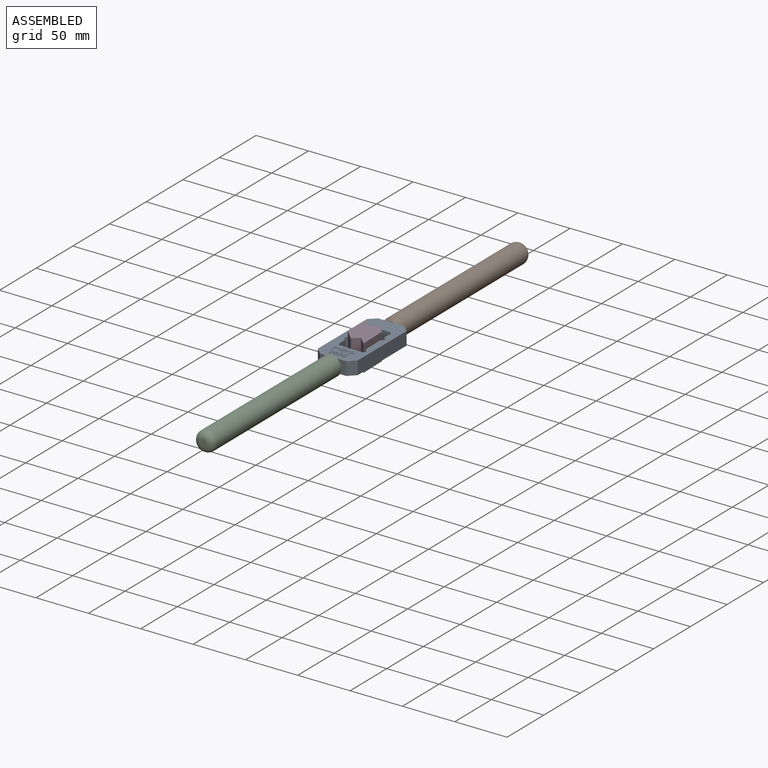
[diagram: assembled view]
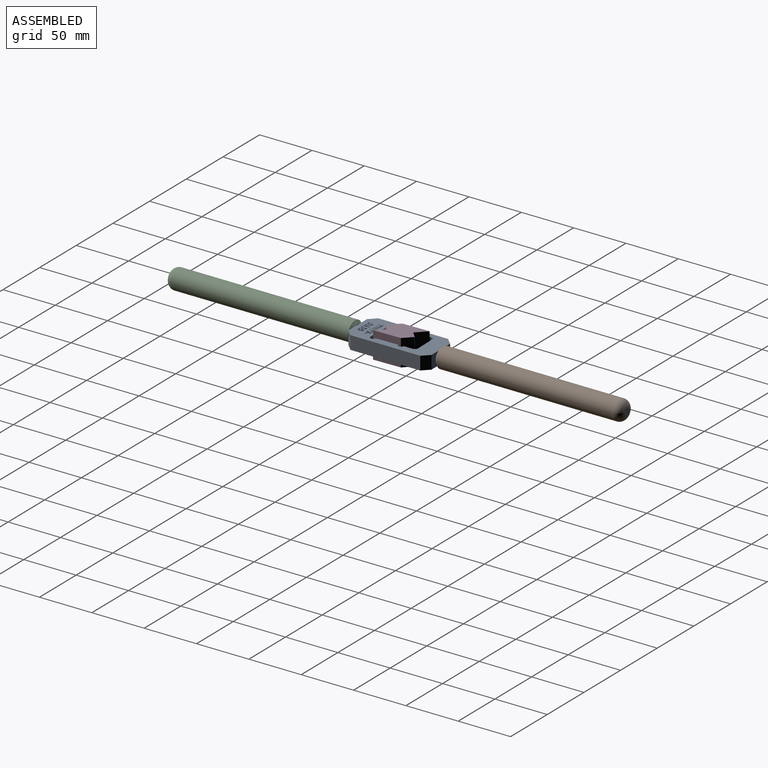
[diagram: assembled view, second angle]
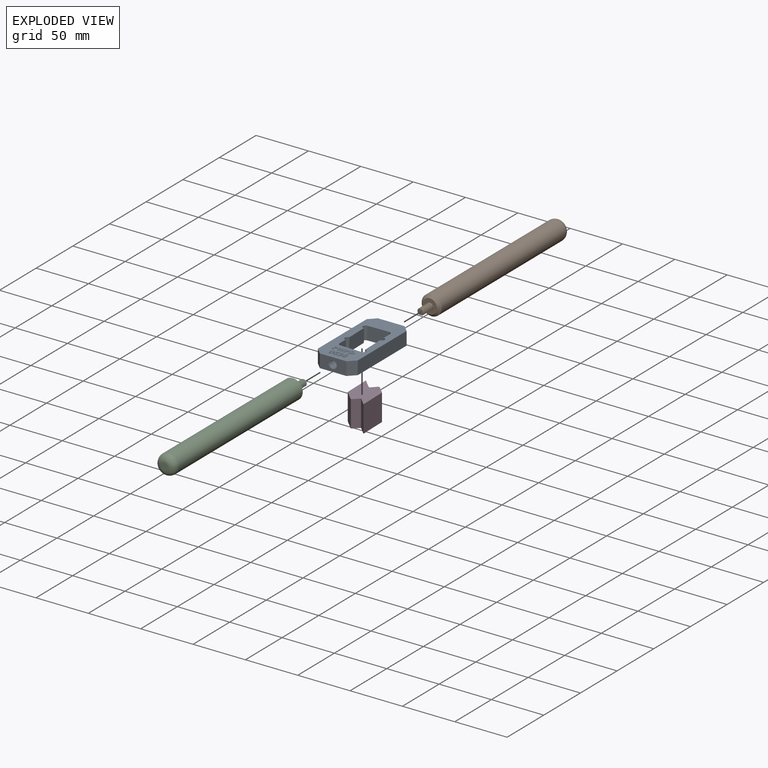
[diagram: exploded view]
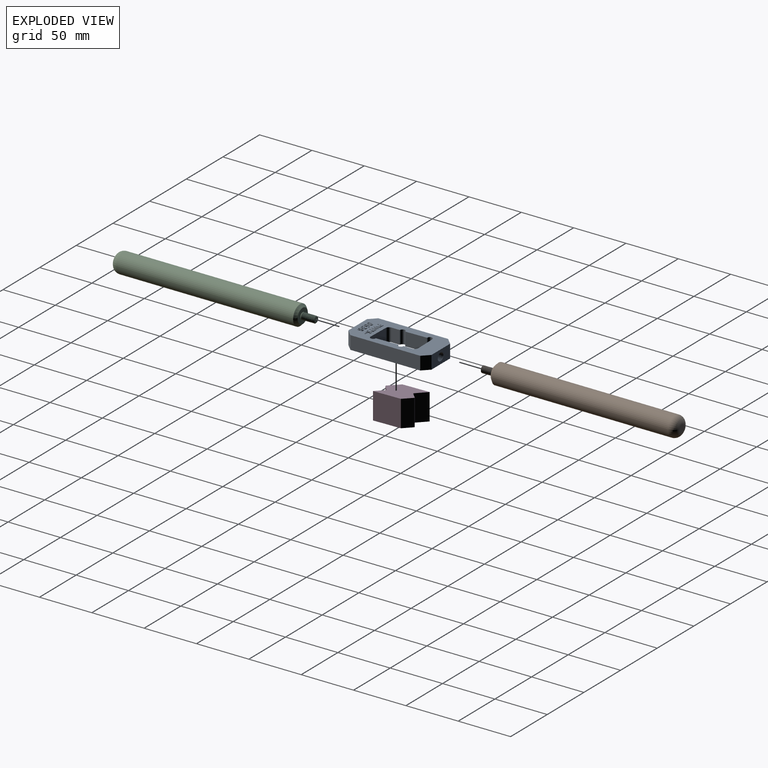
[diagram: exploded view, second angle]
ASSEMBLY  parts=4 mates=3
PART A: 237 faces, bbox 38.5x81.5x13.6 mm
  f0: plane 79.38x38.1mm, normal (0,0,1), area 1827.9mm2, adj f1,f2,f3,f4,f5,f6,f7,f8
  f1: plane 66.68x12.7mm, normal (-1,0,0), area 846.8mm2, adj f0,f15,f18,f21
  f2: plane 25.84x13.14mm, normal (0,-1,0), area 278mm2, adj f0,f15,f20,f21,f24,f25,f26
  f3: plane 66.68x12.7mm, normal (1,0,0), area 846.8mm2, adj f0,f15,f19,f20
  f4: cylinder r=2.54mm len=12.7mm, axis (0,0,-1), area 100.6mm2, adj f0,f5,f13,f15
  f5: plane 20.48x12.7mm, normal (1,0.02,0), area 260.2mm2, adj f0,f4,f6,f15
  f6: cylinder r=2.54mm len=12.7mm, axis (0,0,-1), area 102.1mm2, adj f0,f5,f7,f15
  f7: plane 19.98x12.7mm, normal (0.02,-1,0), area 253.8mm2, adj f0,f6,f15,f16
  f8: plane 12.7x8.46mm, normal (-1,0,0), area 107.5mm2, adj f0,f9,f15,f16
  f9: cylinder r=2.54mm len=12.7mm, axis (0,0,-1), area 100.6mm2, adj f0,f8,f10,f15
  f10: plane 21.11x12.7mm, normal (-1,-0.02,0), area 268.2mm2, adj f0,f9,f11,f15
  f11: cylinder r=2.54mm len=12.7mm, axis (0,0,-1), area 102.8mm2, adj f0,f10,f12,f15
  f12: plane 20.08x12.7mm, normal (0.02,1,0), area 255.1mm2, adj f0,f11,f15,f17
  f13: plane 12.7x8.16mm, normal (1,0,0), area 103.6mm2, adj f0,f4,f15,f17
  f14: plane 25.84x13.14mm, normal (0,1,0), area 278mm2, adj f0,f15,f18,f19,f30,f32,f33
  f15: plane 79.38x38.1mm, normal (0,0,-1), area 1928.1mm2, adj f1,f2,f3,f4,f5,f6,f7,f8
  f16: cylinder r=3.17mm len=12.7mm, axis (0,0,1), area 64.3mm2, adj f0,f7,f8,f15
  f17: cylinder r=3.17mm len=12.7mm, axis (0,0,1), area 62.4mm2, adj f0,f12,f13,f15
  f18: plane 12.7x6.35mm, normal (-0.71,0.71,0), area 114mm2, adj f0,f1,f14,f15
  f19: plane 12.7x6.35mm, normal (0.71,0.71,0), area 114mm2, adj f0,f3,f14,f15
  f20: plane 12.7x6.35mm, normal (0.71,-0.71,0), area 114mm2, adj f0,f2,f3,f15
  f21: plane 12.7x6.35mm, normal (-0.71,-0.71,0), area 114mm2, adj f0,f1,f2,f15
  f22: cone r=0mm half-angle=59deg, axis (0,-1,0), area 36.9mm2, adj f23
  f23: cylinder r=3.17mm len=12.37mm, axis (0,-1,0), area 14.1mm2, adj f22,f24,f25,f26,f27
  f24: cone r=3.17mm half-angle=45deg, axis (0,-1,0), area 1.7mm2, adj f2,f23,f25,f26
  f25: bspline ~13.32x9.82mm, area 282.4mm2, adj f2,f23,f24,f26,f27
  f26: bspline ~12.9x9.82mm, area 268.6mm2, adj f2,f23,f24,f25,f27
  f27: plane 1.24x1.08mm, normal (0,0,1), area 0.7mm2, adj f23,f25,f26
  f28: cone r=0mm half-angle=59deg, axis (0,1,0), area 36.9mm2, adj f29
  f29: cylinder r=3.17mm len=12.37mm, axis (0,1,0), area 14.1mm2, adj f28,f30,f31,f32,f33
  f30: cone r=3.17mm half-angle=45deg, axis (0,1,0), area 1.7mm2, adj f14,f29,f32,f33
  f31: plane 1.24x1.08mm, normal (0,0,1), area 0.7mm2, adj f29,f32,f33
  f32: bspline ~13.32x9.82mm, area 282.2mm2, adj f14,f29,f30,f31,f33
  f33: bspline ~12.9x9.82mm, area 268.8mm2, adj f14,f29,f30,f31,f32
  f34: extruded ~1.24x0.51mm, area 0.7mm2, adj f0,f35,f49,f50
  f35: extruded ~1.17x0.51mm, area 0.7mm2, adj f0,f34,f36,f50
  f36: extruded ~1.39x0.51mm, area 0.7mm2, adj f0,f35,f37,f50
  f37: plane 1.6x0.51mm, normal (0,1,0), area 0.8mm2, adj f0,f36,f38,f50
  f38: plane 5.01x0.51mm, normal (-1,0,0), area 2.5mm2, adj f0,f37,f39,f50
  f39: plane 1.06x0.51mm, normal (0,-1,0), area 0.5mm2, adj f0,f38,f40,f50
  f40: plane 1.78x0.51mm, normal (1,0,0), area 0.9mm2, adj f0,f39,f41,f50
  f41: plane 0.51x0.46mm, normal (0,-1,0), area 0.2mm2, adj f0,f40,f49,f50
  f42: plane 0.51x0.35mm, normal (0,1,0), area 0.2mm2, adj f43,f48,f50,f51
  f43: plane 1.49x0.51mm, normal (1,0,0), area 0.8mm2, adj f42,f44,f50,f51
  f44: plane 0.51x0.48mm, normal (0,-1,0), area 0.2mm2, adj f43,f45,f50,f51
  f45: extruded ~0.64x0.51mm, area 0.3mm2, adj f44,f46,f50,f51
  f46: extruded ~0.55x0.51mm, area 0.3mm2, adj f45,f47,f50,f51
  f47: extruded ~0.56x0.51mm, area 0.3mm2, adj f46,f48,f50,f51
  f48: extruded ~0.73x0.51mm, area 0.4mm2, adj f42,f47,f50,f51
  f49: extruded ~1.44x0.51mm, area 0.8mm2, adj f0,f34,f41,f50
  f50: plane 5.01x3.46mm, normal (0,0,1), area 10.3mm2, adj f34,f35,f36,f37,f38,f39,f40,f41
  f51: plane 1.49x1.33mm, normal (0,0,1), area 1.8mm2, adj f42,f43,f44,f45,f46,f47,f48
  f52: plane 1.21x0.51mm, normal (0,-1,0), area 0.6mm2, adj f0,f53,f75,f76
  f53: plane 5.01x1.28mm, normal (0.97,-0.25,0), area 2.6mm2, adj f0,f52,f54,f76
  f54: plane 1.05x0.51mm, normal (0,1,0), area 0.5mm2, adj f0,f53,f55,f76
  f55: plane 2.74x0.64mm, normal (-0.97,0.23,0), area 1.4mm2, adj f0,f54,f56,f76
  f56: extruded ~0.65x0.51mm, area 0.3mm2, adj f0,f55,f57,f76
  f57: extruded ~0.67x0.51mm, area 0.3mm2, adj f0,f56,f58,f76
  f58: extruded ~0.67x0.51mm, area 0.3mm2, adj f0,f57,f59,f76
  f59: extruded ~0.58x0.51mm, area 0.3mm2, adj f0,f58,f60,f76
  f60: plane 2.81x0.73mm, normal (0.97,0.25,0), area 1.5mm2, adj f0,f59,f61,f76
  f61: plane 1x0.51mm, normal (0,1,0), area 0.5mm2, adj f0,f60,f62,f76
  f62: plane 2.81x0.73mm, normal (-0.97,0.25,0), area 1.5mm2, adj f0,f61,f63,f76
  f63: extruded ~0.64x0.51mm, area 0.3mm2, adj f0,f62,f64,f76
  f64: extruded ~0.61x0.51mm, area 0.3mm2, adj f0,f63,f65,f76
  f65: extruded ~1.31x0.51mm, area 0.7mm2, adj f0,f64,f66,f76
  f66: plane 2.74x0.64mm, normal (0.97,0.23,0), area 1.4mm2, adj f0,f65,f67,f76
  f67: plane 1.05x0.51mm, normal (0,1,0), area 0.5mm2, adj f0,f66,f68,f76
  f68: plane 5.01x1.28mm, normal (-0.97,-0.25,0), area 2.6mm2, adj f0,f67,f69,f76
  f69: plane 1.21x0.51mm, normal (0,-1,0), area 0.6mm2, adj f0,f68,f70,f76
  f70: plane 2.63x0.67mm, normal (0.97,-0.25,0), area 1.4mm2, adj f0,f69,f71,f76
  f71: extruded ~0.58x0.51mm, area 0.3mm2, adj f0,f70,f72,f76
  f72: extruded ~0.6x0.51mm, area 0.3mm2, adj f0,f71,f73,f76
  f73: extruded ~0.59x0.51mm, area 0.3mm2, adj f0,f72,f74,f76
  f74: extruded ~0.58x0.51mm, area 0.3mm2, adj f0,f73,f75,f76
  f75: plane 2.63x0.68mm, normal (-0.97,-0.25,0), area 1.4mm2, adj f0,f52,f74,f76
  f76: plane 6.79x5.01mm, normal (0,0,1), area 17.4mm2, adj f52,f53,f54,f55,f56,f57,f58,f59
  f77: extruded ~1.24x0.51mm, area 0.7mm2, adj f0,f78,f92,f93
  f78: extruded ~1.17x0.51mm, area 0.7mm2, adj f0,f77,f79,f93
  f79: extruded ~1.39x0.51mm, area 0.7mm2, adj f0,f78,f80,f93
  f80: plane 1.6x0.51mm, normal (0,1,0), area 0.8mm2, adj f0,f79,f81,f93
  f81: plane 5.01x0.51mm, normal (-1,0,0), area 2.5mm2, adj f0,f80,f82,f93
  f82: plane 1.06x0.51mm, normal (0,-1,0), area 0.5mm2, adj f0,f81,f83,f93
  f83: plane 1.78x0.51mm, normal (1,0,0), area 0.9mm2, adj f0,f82,f84,f93
  f84: plane 0.51x0.46mm, normal (0,-1,0), area 0.2mm2, adj f0,f83,f92,f93
  f85: plane 0.51x0.35mm, normal (0,1,0), area 0.2mm2, adj f86,f91,f93,f94
  f86: plane 1.49x0.51mm, normal (1,0,0), area 0.8mm2, adj f85,f87,f93,f94
  f87: plane 0.51x0.48mm, normal (0,-1,0), area 0.2mm2, adj f86,f88,f93,f94
  f88: extruded ~0.64x0.51mm, area 0.3mm2, adj f87,f89,f93,f94
  f89: extruded ~0.55x0.51mm, area 0.3mm2, adj f88,f90,f93,f94
  f90: extruded ~0.56x0.51mm, area 0.3mm2, adj f89,f91,f93,f94
  f91: extruded ~0.73x0.51mm, area 0.4mm2, adj f85,f90,f93,f94
  f92: extruded ~1.44x0.51mm, area 0.8mm2, adj f0,f77,f84,f93
  f93: plane 5.01x3.46mm, normal (0,0,1), area 10.3mm2, adj f77,f78,f79,f80,f81,f82,f83,f84
  f94: plane 1.49x1.33mm, normal (0,0,1), area 1.8mm2, adj f85,f86,f87,f88,f89,f90,f91
  f95: extruded ~1.07x0.51mm, area 0.6mm2, adj f0,f96,f122,f123
  f96: extruded ~0.83x0.51mm, area 0.4mm2, adj f0,f95,f97,f123
  f97: extruded ~0.96x0.67mm, area 0.6mm2, adj f0,f96,f98,f123
  f98: extruded ~0.67x0.51mm, area 0.4mm2, adj f0,f97,f99,f123
  f99: extruded ~0.51x0.21mm, area 0.1mm2, adj f0,f98,f100,f123
  f100: extruded ~0.51x0.25mm, area 0.1mm2, adj f0,f99,f101,f123
  f101: extruded ~0.51x0.37mm, area 0.2mm2, adj f0,f100,f102,f123
  f102: extruded ~0.51x0.46mm, area 0.3mm2, adj f0,f101,f103,f123
  f103: extruded ~0.52x0.51mm, area 0.3mm2, adj f0,f102,f104,f123
  f104: extruded ~0.66x0.51mm, area 0.4mm2, adj f0,f103,f105,f123
  f105: plane 0.83x0.51mm, normal (0.92,-0.38,0), area 0.5mm2, adj f0,f104,f106,f123
  f106: extruded ~0.74x0.51mm, area 0.4mm2, adj f0,f105,f107,f123
  f107: extruded ~0.75x0.51mm, area 0.4mm2, adj f0,f106,f108,f123
  f108: extruded ~1.25x0.51mm, area 0.7mm2, adj f0,f107,f109,f123
  f109: extruded ~1.05x0.51mm, area 0.6mm2, adj f0,f108,f110,f123
  f110: extruded ~0.62x0.51mm, area 0.3mm2, adj f0,f109,f111,f123
  f111: extruded ~0.51x0.46mm, area 0.3mm2, adj f0,f110,f112,f123
  f112: extruded ~0.69x0.51mm, area 0.4mm2, adj f0,f111,f113,f123
  f113: extruded ~0.65x0.51mm, area 0.4mm2, adj f0,f112,f114,f123
  f114: extruded ~0.51x0.24mm, area 0.2mm2, adj f0,f113,f115,f123
  f115: extruded ~0.51x0.26mm, area 0.1mm2, adj f0,f114,f116,f123
  f116: extruded ~0.51x0.4mm, area 0.2mm2, adj f0,f115,f117,f123
  f117: extruded ~0.54x0.51mm, area 0.3mm2, adj f0,f116,f118,f123
  f118: extruded ~0.64x0.51mm, area 0.3mm2, adj f0,f117,f119,f123
  f119: extruded ~0.86x0.51mm, area 0.5mm2, adj f0,f118,f120,f123
  f120: plane 0.99x0.51mm, normal (-1,0,0), area 0.5mm2, adj f0,f119,f121,f123
  f121: extruded ~1.42x0.51mm, area 0.7mm2, adj f0,f120,f122,f123
  f122: extruded ~1.36x0.51mm, area 0.7mm2, adj f0,f95,f121,f123
  f123: plane 5.15x3.27mm, normal (0,0,1), area 9.5mm2, adj f95,f96,f97,f98,f99,f100,f101,f102
  f124: plane 0.86x0.51mm, normal (-1,0,0), area 0.4mm2, adj f0,f125,f127,f128
  f125: plane 1.84x0.51mm, normal (0,-1,0), area 0.9mm2, adj f0,f124,f126,f128
  f126: plane 0.86x0.51mm, normal (1,0,0), area 0.4mm2, adj f0,f125,f127,f128
  f127: plane 1.84x0.51mm, normal (0,1,0), area 0.9mm2, adj f0,f124,f126,f128
  f128: plane 1.84x0.86mm, normal (0,0,1), area 1.6mm2, adj f124,f125,f126,f127
  f129: extruded ~1.67x0.51mm, area 0.9mm2, adj f130,f144,f145,f146
  f130: extruded ~1.66x0.51mm, area 0.9mm2, adj f129,f131,f145,f146
  f131: extruded ~0.86x0.52mm, area 0.5mm2, adj f130,f132,f145,f146
  f132: extruded ~0.86x0.53mm, area 0.5mm2, adj f131,f133,f145,f146
  f133: extruded ~1.65x0.51mm, area 0.9mm2, adj f132,f134,f145,f146
  f134: extruded ~1.66x0.51mm, area 0.9mm2, adj f133,f135,f145,f146
  f135: extruded ~0.86x0.53mm, area 0.5mm2, adj f134,f144,f145,f146
  f136: extruded ~2.03x0.51mm, area 1.1mm2, adj f0,f137,f143,f145
  f137: extruded ~2x0.51mm, area 1.1mm2, adj f0,f136,f138,f145
  f138: extruded ~1.3x0.69mm, area 0.8mm2, adj f0,f137,f139,f145
  f139: extruded ~1.3x0.66mm, area 0.8mm2, adj f0,f138,f140,f145
  f140: extruded ~2.03x0.51mm, area 1.1mm2, adj f0,f139,f141,f145
  f141: extruded ~2.01x0.51mm, area 1.1mm2, adj f0,f140,f142,f145
  f142: extruded ~1.29x0.69mm, area 0.8mm2, adj f0,f141,f143,f145
  f143: extruded ~1.31x0.67mm, area 0.8mm2, adj f0,f136,f142,f145
  f144: extruded ~0.86x0.52mm, area 0.5mm2, adj f129,f135,f145,f146
  f145: plane 5.4x3.47mm, normal (0,0,1), area 7.3mm2, adj f129,f130,f131,f132,f133,f134,f135,f136
  f146: plane 4.37x2.25mm, normal (0,0,1), area 8.3mm2, adj f129,f130,f131,f132,f133,f134,f135,f144
  f147: extruded ~0.79x0.51mm, area 0.4mm2, adj f148,f171,f172,f173
  f148: extruded ~0.6x0.51mm, area 0.3mm2, adj f147,f149,f172,f173
  f149: extruded ~0.51x0.51mm, area 0.3mm2, adj f148,f150,f172,f173
  f150: extruded ~0.69x0.51mm, area 0.4mm2, adj f149,f151,f172,f173
  f151: extruded ~0.51x0.48mm, area 0.3mm2, adj f150,f152,f172,f173
  f152: extruded ~0.51x0.43mm, area 0.3mm2, adj f151,f153,f172,f173
  f153: extruded ~0.59x0.51mm, area 0.3mm2, adj f152,f154,f172,f173
  f154: extruded ~0.78x0.51mm, area 0.4mm2, adj f153,f155,f172,f173
  f155: extruded ~0.82x0.51mm, area 0.4mm2, adj f154,f171,f172,f173
  f156: extruded ~2.31x0.6mm, area 1.2mm2, adj f0,f157,f170,f172
  f157: extruded ~1.7x0.51mm, area 0.9mm2, adj f0,f156,f158,f172
  f158: extruded ~1.29x0.61mm, area 0.8mm2, adj f0,f157,f159,f172
  f159: extruded ~1.21x0.51mm, area 0.7mm2, adj f0,f158,f160,f172
  f160: extruded ~1.29x0.51mm, area 0.7mm2, adj f0,f159,f161,f172
  f161: extruded ~1.16x0.51mm, area 0.6mm2, adj f0,f160,f162,f172
  f162: extruded ~1.11x0.51mm, area 0.6mm2, adj f0,f161,f163,f172
  f163: extruded ~1.25x0.62mm, area 0.7mm2, adj f0,f162,f164,f172
  f164: plane 0.51x0.04mm, normal (0,1,0), area 0mm2, adj f0,f163,f165,f172
  f165: extruded ~1.65x0.51mm, area 0.9mm2, adj f0,f164,f166,f172
  f166: extruded ~1.29x0.52mm, area 0.7mm2, adj f0,f165,f167,f172
  f167: extruded ~0.63x0.51mm, area 0.3mm2, adj f0,f166,f168,f172
  f168: plane 0.51x0.51mm, normal (1,0,0), area 0.3mm2, adj f0,f167,f169,f172
  f169: extruded ~0.64x0.51mm, area 0.3mm2, adj f0,f168,f170,f172
  f170: extruded ~1.78x0.77mm, area 1mm2, adj f0,f156,f169,f172
  f171: extruded ~0.93x0.51mm, area 0.5mm2, adj f147,f155,f172,f173
  f172: plane 5.39x3.42mm, normal (0,0,1), area 7.1mm2, adj f147,f148,f149,f150,f151,f152,f153,f154
  f173: plane 2.36x2.22mm, normal (0,0,1), area 4.2mm2, adj f147,f148,f149,f150,f151,f152,f153,f154
  f174: extruded ~0.82x0.51mm, area 0.5mm2, adj f0,f175,f201,f202
  f175: extruded ~0.96x0.51mm, area 0.6mm2, adj f0,f174,f176,f202
  f176: extruded ~1.19x0.51mm, area 0.6mm2, adj f0,f175,f177,f202
  f177: extruded ~0.89x0.51mm, area 0.5mm2, adj f0,f176,f178,f202
  f178: extruded ~0.74x0.51mm, area 0.4mm2, adj f0,f177,f179,f202
  f179: plane 0.51x0.4mm, normal (-0.8,-0.6,0), area 0.3mm2, adj f0,f178,f180,f202
  f180: extruded ~0.7x0.51mm, area 0.4mm2, adj f0,f179,f181,f202
  f181: extruded ~0.65x0.51mm, area 0.3mm2, adj f0,f180,f182,f202
  f182: extruded ~0.72x0.51mm, area 0.4mm2, adj f0,f181,f183,f202
  f183: extruded ~0.6x0.51mm, area 0.3mm2, adj f0,f182,f184,f202
  f184: extruded ~0.75x0.51mm, area 0.4mm2, adj f0,f183,f185,f202
  f185: extruded ~0.97x0.51mm, area 0.5mm2, adj f0,f184,f186,f202
  f186: plane 0.52x0.51mm, normal (0,1,0), area 0.3mm2, adj f0,f185,f187,f202
  f187: plane 0.51x0.51mm, normal (-1,0,0), area 0.3mm2, adj f0,f186,f188,f202
  f188: plane 0.52x0.51mm, normal (0,-1,0), area 0.3mm2, adj f0,f187,f189,f202
  f189: extruded ~1.5x0.95mm, area 1mm2, adj f0,f188,f190,f202
  f190: extruded ~1.36x1.06mm, area 1mm2, adj f0,f189,f191,f202
  f191: extruded ~0.73x0.51mm, area 0.4mm2, adj f0,f190,f192,f202
  f192: extruded ~0.73x0.51mm, area 0.4mm2, adj f0,f191,f193,f202
  f193: plane 0.57x0.51mm, normal (-1,0,0), area 0.3mm2, adj f0,f192,f194,f202
  f194: extruded ~0.67x0.51mm, area 0.4mm2, adj f0,f193,f195,f202
  f195: extruded ~0.76x0.51mm, area 0.4mm2, adj f0,f194,f196,f202
  f196: extruded ~1.48x0.51mm, area 0.8mm2, adj f0,f195,f197,f202
  f197: extruded ~1.15x0.52mm, area 0.7mm2, adj f0,f196,f198,f202
  f198: extruded ~0.85x0.51mm, area 0.5mm2, adj f0,f197,f199,f202
  f199: extruded ~0.94x0.51mm, area 0.5mm2, adj f0,f198,f200,f202
  f200: plane 0.51x0.03mm, normal (1,0,0), area 0mm2, adj f0,f199,f201,f202
  f201: extruded ~0.8x0.51mm, area 0.5mm2, adj f0,f174,f200,f202
  f202: plane 5.39x3.43mm, normal (0,0,1), area 6.4mm2, adj f174,f175,f176,f177,f178,f179,f180,f181
  f203: extruded ~0.7x0.51mm, area 0.4mm2, adj f204,f233,f234,f235
  f204: extruded ~0.72x0.51mm, area 0.4mm2, adj f203,f205,f234,f235
  f205: extruded ~0.58x0.51mm, area 0.3mm2, adj f204,f206,f234,f235
  f206: extruded ~0.58x0.51mm, area 0.3mm2, adj f205,f207,f234,f235
  f207: extruded ~0.73x0.51mm, area 0.4mm2, adj f206,f208,f234,f235
  f208: extruded ~0.78x0.51mm, area 0.5mm2, adj f207,f209,f234,f235
  f209: extruded ~0.57x0.51mm, area 0.3mm2, adj f208,f233,f234,f235
  f210: extruded ~0.67x0.51mm, area 0.4mm2, adj f211,f231,f234,f236
  f211: extruded ~0.67x0.51mm, area 0.4mm2, adj f210,f212,f234,f236
  f212: extruded ~0.77x0.51mm, area 0.5mm2, adj f211,f213,f234,f236
  f213: extruded ~0.98x0.53mm, area 0.6mm2, adj f212,f214,f234,f236
  f214: extruded ~0.62x0.51mm, area 0.4mm2, adj f213,f215,f234,f236
  f215: extruded ~0.69x0.51mm, area 0.4mm2, adj f214,f216,f234,f236
  f216: extruded ~0.83x0.51mm, area 0.5mm2, adj f215,f231,f234,f236
  f217: extruded ~1.14x0.51mm, area 0.6mm2, adj f0,f218,f232,f234
  f218: extruded ~1.13x0.51mm, area 0.6mm2, adj f0,f217,f219,f234
  f219: extruded ~0.91x0.51mm, area 0.5mm2, adj f0,f218,f220,f234
  f220: extruded ~0.73x0.51mm, area 0.4mm2, adj f0,f219,f221,f234
  f221: extruded ~0.71x0.6mm, area 0.5mm2, adj f0,f220,f222,f234
  f222: extruded ~1.4x1.1mm, area 1mm2, adj f0,f221,f223,f234
  f223: extruded ~1.04x0.51mm, area 0.6mm2, adj f0,f222,f224,f234
  f224: extruded ~1.29x0.51mm, area 0.7mm2, adj f0,f223,f225,f234
  f225: extruded ~1.25x0.51mm, area 0.7mm2, adj f0,f224,f226,f234
  f226: extruded ~1.04x0.51mm, area 0.6mm2, adj f0,f225,f227,f234
  f227: extruded ~0.78x0.51mm, area 0.4mm2, adj f0,f226,f228,f234
  f228: extruded ~0.91x0.64mm, area 0.6mm2, adj f0,f227,f229,f234
  f229: extruded ~0.77x0.58mm, area 0.5mm2, adj f0,f228,f230,f234
  f230: extruded ~0.71x0.51mm, area 0.4mm2, adj f0,f229,f232,f234
  f231: extruded ~0.84x0.51mm, area 0.5mm2, adj f210,f216,f234,f236
  f232: extruded ~0.92x0.51mm, area 0.5mm2, adj f0,f217,f230,f234
  f233: extruded ~0.57x0.51mm, area 0.3mm2, adj f203,f209,f234,f235
  f234: plane 5.39x3.44mm, normal (0,0,1), area 8.1mm2, adj f203,f204,f205,f206,f207,f208,f209,f210
  f235: plane 1.93x1.83mm, normal (0,0,1), area 2.7mm2, adj f203,f204,f205,f206,f207,f208,f209,f233
  f236: plane 2.27x2.08mm, normal (0,0,1), area 3.6mm2, adj f210,f211,f212,f213,f214,f215,f216,f231
PART B: 12 faces, bbox 19.5x191.7x19.5 mm
  f0: cylinder r=9.53mm len=168.91mm, axis (0,1,0), area 10108.8mm2, adj f5,f6
  f1: plane 13.97x13.97mm, normal (0,-1,0), area 121.6mm2, adj f3,f5,f11
  f2: plane 6.35x6.35mm, normal (0,1,0), area 31.7mm2, adj f6
  f3: cylinder r=3.17mm len=12.38mm, axis (0,1,0), area 12.3mm2, adj f1,f7,f8,f9,f10
  f4: plane 5.78x5.46mm, normal (0,-1,0), area 21.4mm2, adj f7,f9,f10
  f5: cone r=6.99mm half-angle=45deg, axis (0,1,0), area 186.3mm2, adj f0,f1
  f6: torus R=3.17mm, axis (0,-1,0), area 452.3mm2, adj f0,f2
  f7: cone r=2.86mm half-angle=45deg, axis (0,1,0), area 1.4mm2, adj f3,f4,f9,f10
  f8: plane 1.24x1.08mm, normal (0,0,-1), area 0.7mm2, adj f3,f9,f10,f11
  f9: bspline ~12.9x7.33mm, area 190.3mm2, adj f3,f4,f7,f8,f10
  f10: bspline ~13.32x7.33mm, area 201.3mm2, adj f3,f4,f7,f8,f9,f11
  f11: cylinder r=3.17mm len=0.19mm, axis (0,1,0), area 0mm2, adj f1,f8,f10
PART C: same geometry as B
PART D: 18 faces, bbox 24.1x37.7x25.7 mm
  f0: plane 25.4x0.88mm, normal (-0.71,-0.7,0), area 31.3mm2, adj f1,f15,f16,f17
  f1: extruded ~25.4x1.44mm, area 40.6mm2, adj f0,f2,f16,f17
  f2: plane 25.4x3.07mm, normal (0.7,-0.71,0), area 109.1mm2, adj f1,f3,f16,f17
  f3: plane 25.4x1.58mm, normal (0.7,-0.71,0), area 56.1mm2, adj f2,f4,f16,f17
  f4: cylinder r=0.75mm len=25.4mm, axis (0,0,-1), area 21mm2, adj f3,f5,f16,f17
  f5: cylinder r=0.79mm len=25.4mm, axis (0,0,1), area 9.4mm2, adj f4,f6,f16,f17
  f6: extruded ~25.4x5.84mm, area 207.9mm2, adj f5,f7,f16,f17
  f7: plane 25.4x1.45mm, normal (-0.71,-0.7,0), area 51.7mm2, adj f6,f8,f16,f17
  f8: plane 26.19x25.4mm, normal (1,0.02,0), area 665.4mm2, adj f7,f9,f16,f17
  f9: plane 25.4x7.4mm, normal (0.7,0.71,0), area 264.2mm2, adj f8,f10,f16,f17
  f10: cylinder r=0.76mm len=25.4mm, axis (0,0,-1), area 30.4mm2, adj f9,f11,f16,f17
  f11: plane 25.4x4.7mm, normal (-0.71,0.7,0), area 167.7mm2, adj f10,f12,f16,f17
  f12: cylinder r=1.02mm len=25.4mm, axis (0,0,-1), area 40.5mm2, adj f11,f13,f16,f17
  f13: plane 25.4x8.67mm, normal (0.7,0.71,0), area 309.8mm2, adj f12,f14,f16,f17
  f14: plane 25.56x25.4mm, normal (-1,-0.02,0), area 649.5mm2, adj f13,f15,f16,f17
  f15: cylinder r=782.26mm len=25.4mm, axis (0,0,-1), area 290.3mm2, adj f0,f14,f16,f17
  f16: plane 37.66x24.13mm, normal (0,0,1), area 596.7mm2, adj f0,f1,f2,f3,f4,f5,f6,f7
  f17: plane 37.66x24.13mm, normal (0,0,-1), area 596.3mm2, adj f0,f1,f2,f3,f4,f5,f6,f7
PLACE A t=(-18.8,-49.55,-110.29)mm
PLACE B rot(axis=(0,1,0),0deg) t=(-18.8,79.03,-78.54)mm
PLACE C rot(axis=(1,0,0),180deg) t=(-18.8,-178.14,-78.54)mm
PLACE D t=(-18.62,-49.55,-91.24)mm
MATE slider D.f14 <-> A.f5  axis (-1,-0.02,0) through (-29.76,-41.24,-78.54)mm
MATE revolute C.f0 <-> A.f22  axis (0,1,0) through (-18.8,-89.24,-78.54)mm
MATE revolute B.f0 <-> A.f28  axis (0,-1,0) through (-18.8,-9.87,-78.54)mm
